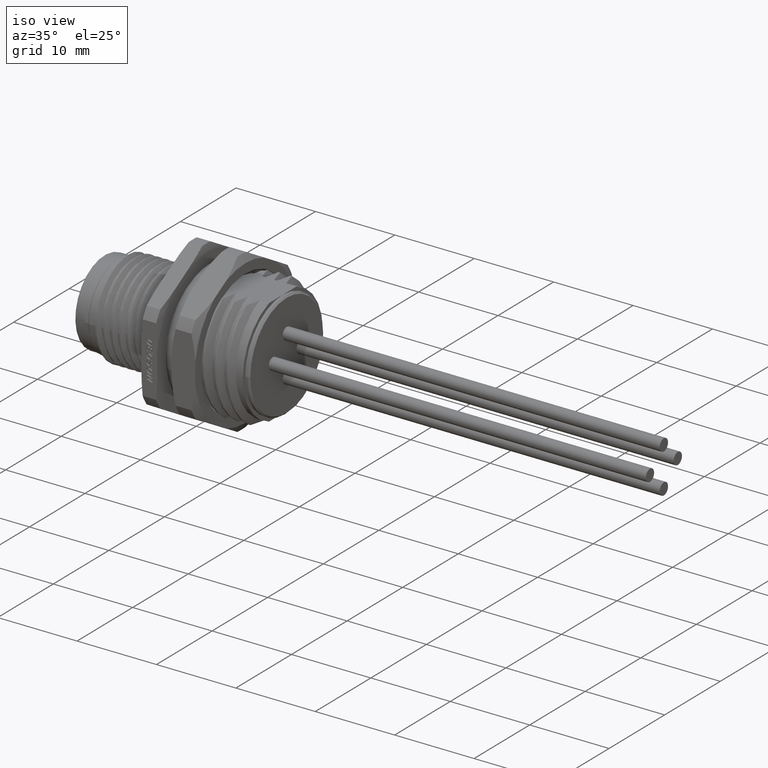
[diagram: clean part render]
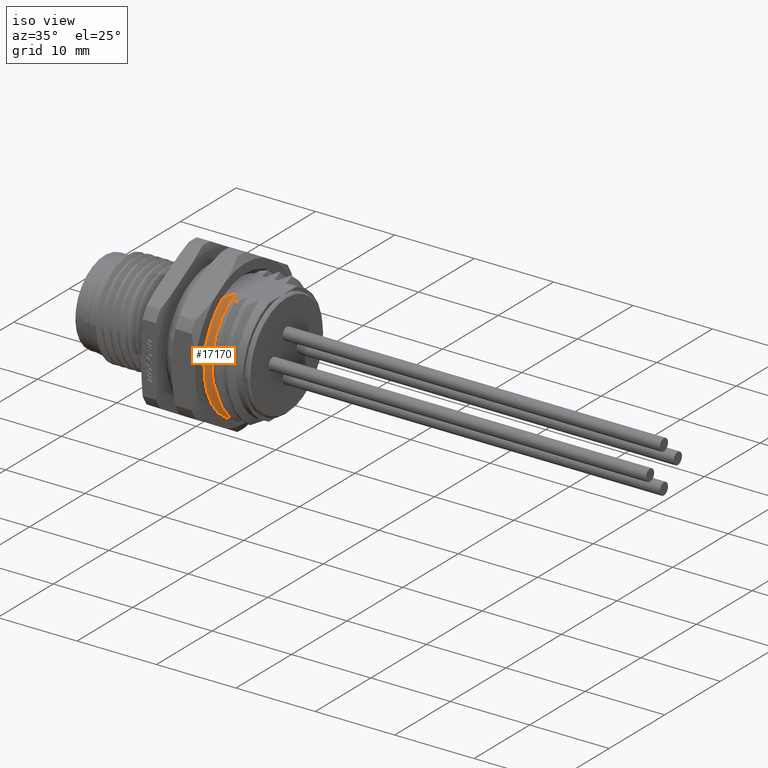
[diagram: same view with one face highlighted and labeled with its STEP entity id]
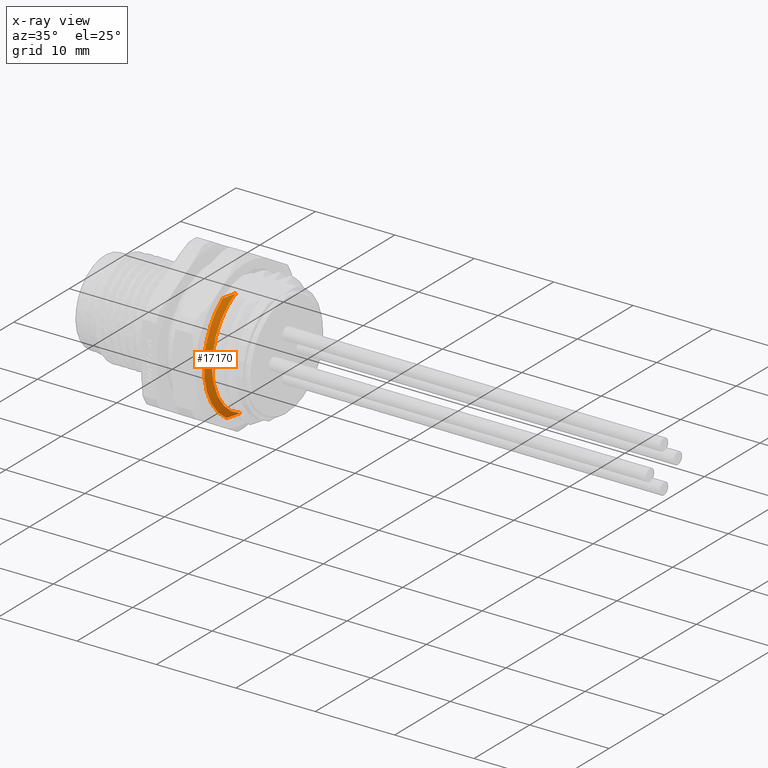
[diagram: x-ray of the same camera — body ghosted, the highlighted face saturated]
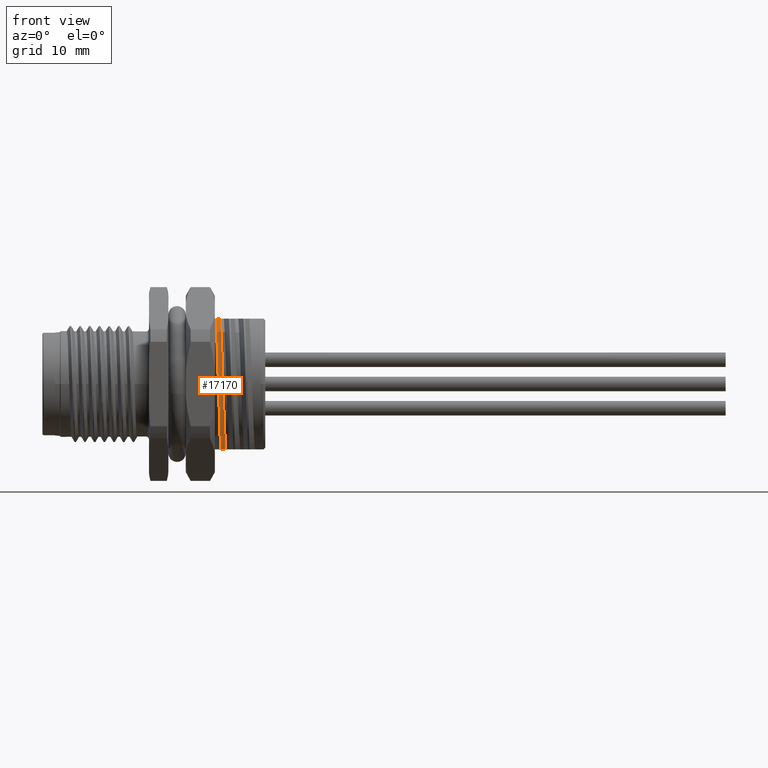
[diagram: same view with one face highlighted and labeled with its STEP entity id]
A machine part, iso view. The second image highlights one B-rep face of the part: STEP entity #17170.
The next image is the same camera in x-ray: the body ghosted, the highlighted face saturated — about 0% of this face is hidden behind the body in this view.
A second angle (front view) of the same face is appended — the face is thin or edge-on in the first view.
In plain terms, the highlighted face is a freeform B-spline surface patch.
Its self-contained STEP definition (entity closure, byte-faithful):
#2510=CARTESIAN_POINT('',(1.680846601225E1,-4.293869988471E0,
-6.749971424863E0));
#2511=CARTESIAN_POINT('',(1.687299681580E1,-4.101391768862E0,
-6.749971424863E0));
#2512=CARTESIAN_POINT('',(1.699873148552E1,-3.710195295813E0,
-6.750005347726E0));
#2513=CARTESIAN_POINT('',(1.717224988543E1,-3.110224187973E0,
-6.750024145665E0));
#2514=CARTESIAN_POINT('',(1.727906580873E1,-2.687182846067E0,
-6.749940094965E0));
#2515=CARTESIAN_POINT('',(1.732874477138E1,-2.470769568585E0,
-6.749940094965E0));
#2931=CARTESIAN_POINT('',(1.674627912396E1,-2.470792454928E0,6.749983552810E0));
#2932=CARTESIAN_POINT('',(1.671211002092E1,-2.675320490088E0,6.749983552810E0));
#2933=CARTESIAN_POINT('',(1.663464752742E1,-3.082819772953E0,6.749997313978E0));
#2934=CARTESIAN_POINT('',(1.649552100809E1,-3.684897606422E0,6.750034071863E0));
#2935=CARTESIAN_POINT('',(1.638681918352E1,-4.090555507529E0,6.749922289668E0));
#2936=CARTESIAN_POINT('',(1.632897682089E1,-4.293601803197E0,6.749922289668E0));
#3362=CARTESIAN_POINT('',(1.680846601225E1,-4.293869988471E0,
-6.749971424863E0));
#3363=CARTESIAN_POINT('',(1.679386734974E1,-4.703126245153E0,
-6.489657168451E0));
#3364=CARTESIAN_POINT('',(1.676511147689E1,-5.474632354197E0,
-5.894021956906E0));
#3365=CARTESIAN_POINT('',(1.672153273912E1,-6.452113382894E0,
-4.804606828257E0));
#3366=CARTESIAN_POINT('',(1.667799670351E1,-7.216845268025E0,
-3.554273236583E0));
#3367=CARTESIAN_POINT('',(1.663441383839E1,-7.742239270712E0,
-2.185125552500E0));
#3368=CARTESIAN_POINT('',(1.659078991904E1,-8.010449573602E0,
-7.419093502740E-1));
#3369=CARTESIAN_POINT('',(1.654716375745E1,-8.011891643618E0,
7.262449897063E-1));
#3370=CARTESIAN_POINT('',(1.650350632131E1,-7.746236436587E0,2.170992777911E0));
#3371=CARTESIAN_POINT('',(1.645987251206E1,-7.222436255974E0,3.542981613790E0));
#3372=CARTESIAN_POINT('',(1.641620068870E1,-6.457817627008E0,4.797041724849E0));
#3373=CARTESIAN_POINT('',(1.637266337075E1,-5.478597339166E0,5.890416115803E0));
#3374=CARTESIAN_POINT('',(1.634339329746E1,-4.704574483966E0,6.488547531873E0));
#3375=CARTESIAN_POINT('',(1.632897682089E1,-4.293601803197E0,6.749922289668E0));
#3403=CARTESIAN_POINT('',(1.732874477138E1,-2.470769568585E0,
-6.749940094965E0));
#3404=CARTESIAN_POINT('',(1.731492119577E1,-2.862876864824E0,
-6.606411499312E0));
#3405=CARTESIAN_POINT('',(1.728718482097E1,-3.622049338533E0,
-6.250939817732E0));
#3406=CARTESIAN_POINT('',(1.724557983382E1,-4.651019661893E0,
-5.528196443622E0));
#3407=CARTESIAN_POINT('',(1.720397549724E1,-5.539114961319E0,
-4.638026907769E0));
#3408=CARTESIAN_POINT('',(1.716237409725E1,-6.259402753797E0,
-3.607340851141E0));
#3409=CARTESIAN_POINT('',(1.712075566519E1,-6.790080612491E0,
-2.467375749555E0));
#3410=CARTESIAN_POINT('',(1.707921134025E1,-7.115027399371E0,
-1.252657683374E0));
#3411=CARTESIAN_POINT('',(1.705131558223E1,-7.188043460623E0,
-4.175579303623E-1));
#3412=CARTESIAN_POINT('',(1.703750516907E1,-7.188049638296E0,
-5.336852326854E-5));
#3414=CARTESIAN_POINT('',(1.703750516907E1,-7.188049638296E0,
-5.336852326854E-5));
#3415=CARTESIAN_POINT('',(1.702369127849E1,-7.188055817524E0,
4.175563194438E-1));
#3416=CARTESIAN_POINT('',(1.699595489651E1,-7.115021773320E0,1.252657727662E0));
#3417=CARTESIAN_POINT('',(1.695434907239E1,-6.790082594827E0,2.467373316402E0));
#3418=CARTESIAN_POINT('',(1.691274586041E1,-6.259406820664E0,3.607333009137E0));
#3419=CARTESIAN_POINT('',(1.687114055801E1,-5.539123496966E0,4.638014231157E0));
#3420=CARTESIAN_POINT('',(1.682954102064E1,-4.651034888911E0,5.528191173682E0));
#3421=CARTESIAN_POINT('',(1.678791488609E1,-3.622052277316E0,6.250912676662E0));
#3422=CARTESIAN_POINT('',(1.676024123440E1,-2.862901130904E0,6.606454425504E0));
#3423=CARTESIAN_POINT('',(1.674627912396E1,-2.470792454928E0,6.749983552810E0));
#12858=CARTESIAN_POINT('',(1.680846601225E1,-4.293869988471E0,
-6.749971424863E0));
#12859=VERTEX_POINT('',#12858);
#12860=VERTEX_POINT('',#2515);
#12966=CARTESIAN_POINT('',(1.674627912396E1,-2.470792454928E0,
6.749983552810E0));
#12967=VERTEX_POINT('',#12966);
#12968=VERTEX_POINT('',#2936);
#13005=VERTEX_POINT('',#3414);
#17108=CARTESIAN_POINT('',(1.682596525954E1,-2.403602337314E0,
-7.712862154744E0));
#17109=CARTESIAN_POINT('',(1.701262736679E1,-2.307415235501E0,
-7.404209660175E0));
#17110=CARTESIAN_POINT('',(1.719928947404E1,-2.211228133688E0,
-7.095557165606E0));
#17111=CARTESIAN_POINT('',(1.738595158129E1,-2.115041031874E0,
-6.786904671037E0));
#17112=CARTESIAN_POINT('',(1.682208235787E1,-2.529056405005E0,
-7.673753062323E0));
#17113=CARTESIAN_POINT('',(1.700874446512E1,-2.427848895700E0,
-7.366665631241E0));
#17114=CARTESIAN_POINT('',(1.719540657238E1,-2.326641386395E0,
-7.059578200159E0));
#17115=CARTESIAN_POINT('',(1.738206867963E1,-2.225433877089E0,
-6.752490769076E0));
#17116=CARTESIAN_POINT('',(1.680620707798E1,-3.038100696802E0,
-7.501409986567E0));
#17117=CARTESIAN_POINT('',(1.699286918523E1,-2.916522307355E0,
-7.201219362297E0));
#17118=CARTESIAN_POINT('',(1.717953129249E1,-2.794943917907E0,
-6.901028738027E0));
#17119=CARTESIAN_POINT('',(1.736619339974E1,-2.673365528459E0,
-6.600838113757E0));
#17120=CARTESIAN_POINT('',(1.676122583032E1,-4.428459797098E0,
-6.871254574273E0));
#17121=CARTESIAN_POINT('',(1.694788793758E1,-4.251242165558E0,
-6.596281442040E0));
#17122=CARTESIAN_POINT('',(1.713455004483E1,-4.074024534017E0,
-6.321308309807E0));
#17123=CARTESIAN_POINT('',(1.732121215208E1,-3.896806902477E0,
-6.046335177574E0));
#17124=CARTESIAN_POINT('',(1.669102151657E1,-6.300166375056E0,
-5.343785227585E0));
#17125=CARTESIAN_POINT('',(1.687768362383E1,-6.048046989433E0,
-5.129938200652E0));
#17126=CARTESIAN_POINT('',(1.706434573108E1,-5.795927603810E0,
-4.916091173718E0));
#17127=CARTESIAN_POINT('',(1.725100783833E1,-5.543808218188E0,
-4.702244146785E0));
#17128=CARTESIAN_POINT('',(1.660370361327E1,-7.794667929831E0,
-2.737021880733E0));
#17129=CARTESIAN_POINT('',(1.679036572053E1,-7.482741740487E0,
-2.627492031212E0));
#17130=CARTESIAN_POINT('',(1.697702782778E1,-7.170815551142E0,
-2.517962181690E0));
#17131=CARTESIAN_POINT('',(1.716368993503E1,-6.858889361797E0,
-2.408432332169E0));
#17132=CARTESIAN_POINT('',(1.651638570996E1,-8.257989563857E0,
2.318302723989E-1));
#17133=CARTESIAN_POINT('',(1.670304781722E1,-7.927522218808E0,
2.225529133013E-1));
#17134=CARTESIAN_POINT('',(1.688970992447E1,-7.597054873759E0,
2.132755542037E-1));
#17135=CARTESIAN_POINT('',(1.707637203173E1,-7.266587528710E0,
2.039981951062E-1));
#17136=CARTESIAN_POINT('',(1.642906780666E1,-7.628837073176E0,
3.170012905794E0));
#17137=CARTESIAN_POINT('',(1.661572991392E1,-7.323547085353E0,
3.043155667645E0));
#17138=CARTESIAN_POINT('',(1.680239202117E1,-7.018257097531E0,
2.916298429495E0));
#17139=CARTESIAN_POINT('',(1.698905412843E1,-6.712967109709E0,
2.789441191346E0));
#17140=CARTESIAN_POINT('',(1.634174990336E1,-5.990442921485E0,
5.688825055879E0));
#17141=CARTESIAN_POINT('',(1.652841201062E1,-5.750718015970E0,
5.461170261923E0));
#17142=CARTESIAN_POINT('',(1.671507411787E1,-5.510993110455E0,
5.233515467967E0));
#17143=CARTESIAN_POINT('',(1.690173622513E1,-5.271268204940E0,
5.005860674011E0));
#17144=CARTESIAN_POINT('',(1.627601231685E1,-4.160340641096E0,
7.018530271944E0));
#17145=CARTESIAN_POINT('',(1.646267442411E1,-3.993852573324E0,
6.737663476561E0));
#17146=CARTESIAN_POINT('',(1.664933653136E1,-3.827364505551E0,
6.456796681178E0));
#17147=CARTESIAN_POINT('',(1.683599863862E1,-3.660876437778E0,
6.175929885795E0));
#17148=CARTESIAN_POINT('',(1.623549762140E1,-2.894936635790E0,
7.550074641690E0));
#17149=CARTESIAN_POINT('',(1.642215972865E1,-2.779087370454E0,
7.247936560446E0));
#17150=CARTESIAN_POINT('',(1.660882183590E1,-2.663238105118E0,
6.945798479203E0));
#17151=CARTESIAN_POINT('',(1.679548394315E1,-2.547388839782E0,
6.643660397959E0));
#17152=CARTESIAN_POINT('',(1.622408889370E1,-2.529088689090E0,
7.673816659578E0));
#17153=CARTESIAN_POINT('',(1.641075100095E1,-2.427879887841E0,
7.366726683469E0));
#17154=CARTESIAN_POINT('',(1.659741310821E1,-2.326671086591E0,
7.059636707359E0));
#17155=CARTESIAN_POINT('',(1.678407521546E1,-2.225462285341E0,
6.752546731250E0));
#17156=CARTESIAN_POINT('',(1.622020581698E1,-2.403618070258E0,
7.712887877624E0));
#17157=CARTESIAN_POINT('',(1.640686792423E1,-2.307430338842E0,
7.404234353681E0));
#17158=CARTESIAN_POINT('',(1.659353003149E1,-2.211242607426E0,
7.095580829737E0));
#17159=CARTESIAN_POINT('',(1.678019213875E1,-2.115054876010E0,
6.786927305794E0));
#17160=B_SPLINE_SURFACE_WITH_KNOTS('',3,3,((#17108,#17109,#17110,#17111),
(#17112,#17113,#17114,#17115),(#17116,#17117,#17118,#17119),(#17120,#17121,
#17122,#17123),(#17124,#17125,#17126,#17127),(#17128,#17129,#17130,#17131),(
#17132,#17133,#17134,#17135),(#17136,#17137,#17138,#17139),(#17140,#17141,
#17142,#17143),(#17144,#17145,#17146,#17147),(#17148,#17149,#17150,#17151),(
#17152,#17153,#17154,#17155),(#17156,#17157,#17158,#17159)),.UNSPECIFIED.,.F.,
.F.,.F.,(4,1,1,1,1,1,1,1,1,1,4),(4,4),(-1.999909841266E-2,0.E0,
6.176740299773E-2,2.116792893485E-1,3.615911757003E-1,5.115030620511E-1,
6.614149484019E-1,8.113268347537E-1,9.612387211044E-1,1.E0,1.02E0),(
8.217058324977E-5,1.000016515442E0),.UNSPECIFIED.);
#17161=ORIENTED_EDGE('',*,*,#16615,.F.);
#17163=ORIENTED_EDGE('',*,*,#17162,.F.);
#17165=ORIENTED_EDGE('',*,*,#17164,.F.);
#17166=ORIENTED_EDGE('',*,*,#16282,.F.);
#17167=ORIENTED_EDGE('',*,*,#17100,.T.);
#17168=EDGE_LOOP('',(#17161,#17163,#17165,#17166,#17167));
#17169=FACE_OUTER_BOUND('',#17168,.F.);
#17170=ADVANCED_FACE('',(#17169),#17160,.F.);
#2516=B_SPLINE_CURVE_WITH_KNOTS('',3,(#2510,#2511,#2512,#2513,#2514,#2515),
.UNSPECIFIED.,.F.,.F.,(4,1,1,4),(0.E0,3.333333333333E-1,6.666666666667E-1,1.E0),
.UNSPECIFIED.);
#2937=B_SPLINE_CURVE_WITH_KNOTS('',3,(#2931,#2932,#2933,#2934,#2935,#2936),
.UNSPECIFIED.,.F.,.F.,(4,1,1,4),(0.E0,3.333333333333E-1,6.666666666667E-1,1.E0),
.UNSPECIFIED.);
#3376=B_SPLINE_CURVE_WITH_KNOTS('',3,(#3362,#3363,#3364,#3365,#3366,#3367,#3368,
#3369,#3370,#3371,#3372,#3373,#3374,#3375),.UNSPECIFIED.,.F.,.F.,(4,1,1,1,1,1,1,
1,1,1,1,4),(0.E0,9.090909090909E-2,1.818181818182E-1,2.727272727273E-1,
3.636363636364E-1,4.545454545455E-1,5.454545454545E-1,6.363636363636E-1,
7.272727272727E-1,8.181818181818E-1,9.090909090909E-1,1.E0),.UNSPECIFIED.);
#3413=B_SPLINE_CURVE_WITH_KNOTS('',3,(#3403,#3404,#3405,#3406,#3407,#3408,#3409,
#3410,#3411,#3412),.UNSPECIFIED.,.F.,.F.,(4,1,1,1,1,1,1,4),(0.E0,
1.428571428571E-1,2.857142857143E-1,4.285714285714E-1,5.714285714286E-1,
7.142857142857E-1,8.571428571429E-1,1.E0),.UNSPECIFIED.);
#3424=B_SPLINE_CURVE_WITH_KNOTS('',3,(#3414,#3415,#3416,#3417,#3418,#3419,#3420,
#3421,#3422,#3423),.UNSPECIFIED.,.F.,.F.,(4,1,1,1,1,1,1,4),(0.E0,
1.428571428571E-1,2.857142857143E-1,4.285714285714E-1,5.714285714286E-1,
7.142857142857E-1,8.571428571429E-1,1.E0),.UNSPECIFIED.);
#16282=EDGE_CURVE('',#12859,#12860,#2516,.T.);
#16615=EDGE_CURVE('',#12967,#12968,#2937,.T.);
#17100=EDGE_CURVE('',#12859,#12968,#3376,.T.);
#17162=EDGE_CURVE('',#13005,#12967,#3424,.T.);
#17164=EDGE_CURVE('',#12860,#13005,#3413,.T.);